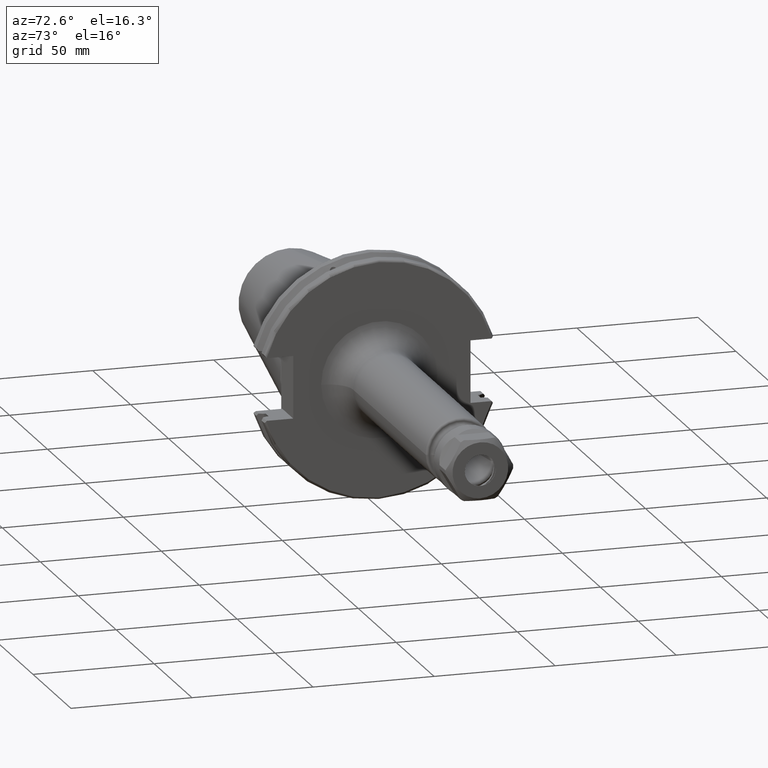
[diagram: clean part render]
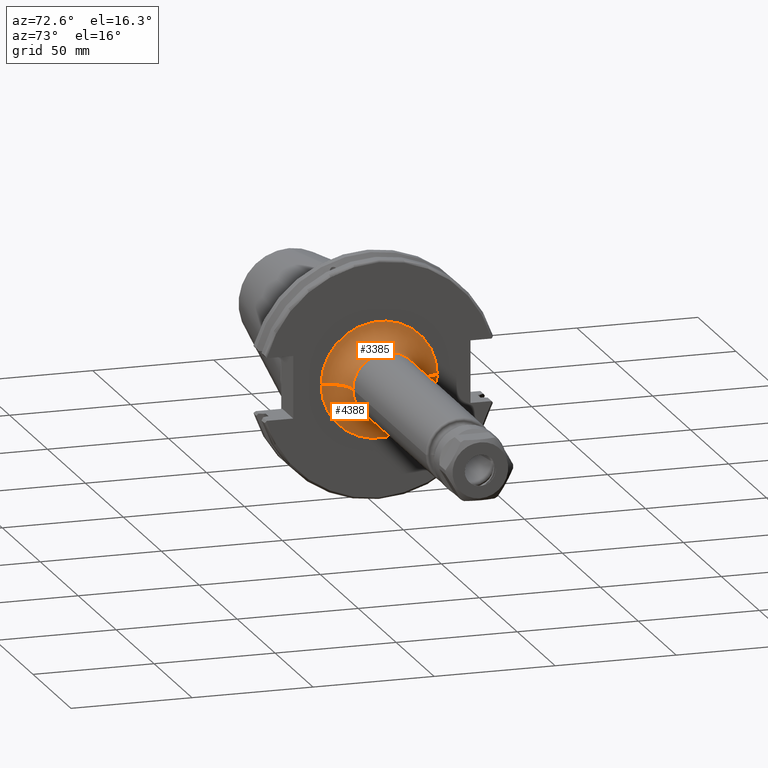
[diagram: same view with one multi-face feature highlighted, each face labeled with its STEP entity id]
A machine part, auxiliary view. The highlighted faces form ONE feature: a constant-radius fillet chain: 2 tangent blend faces with common blend radius 10.0076 mm. The faces share edges in the B-rep.
Their STEP definitions:
[1] entity #3385 (Torus):
#879=CARTESIAN_POINT('',(1.144E0,0.E0,0.E0));
#880=DIRECTION('',(1.E0,0.E0,0.E0));
#881=DIRECTION('',(0.E0,1.E0,0.E0));
#882=AXIS2_PLACEMENT_3D('',#879,#880,#881);
#889=CARTESIAN_POINT('',(1.144E0,9.45E-1,-1.314789735418E-10));
#890=DIRECTION('',(0.E0,1.391311926779E-10,1.E0));
#891=DIRECTION('',(-1.E0,-2.643091611340E-11,0.E0));
#892=AXIS2_PLACEMENT_3D('',#889,#890,#891);
#939=CARTESIAN_POINT('',(7.5E-1,0.E0,0.E0));
#940=DIRECTION('',(1.E0,0.E0,0.E0));
#941=DIRECTION('',(0.E0,1.E0,0.E0));
#942=AXIS2_PLACEMENT_3D('',#939,#940,#941);
#1866=CARTESIAN_POINT('',(1.144E0,-9.45E-1,1.314793378338E-10));
#1867=DIRECTION('',(0.E0,-1.391315777866E-10,-1.E0));
#1868=DIRECTION('',(-1.E0,2.643091611340E-11,0.E0));
#1869=AXIS2_PLACEMENT_3D('',#1866,#1867,#1868);
#2219=CARTESIAN_POINT('',(7.5E-1,-9.45E-1,0.E0));
#2220=CARTESIAN_POINT('',(7.5E-1,9.45E-1,0.E0));
#2221=VERTEX_POINT('',#2219);
#2222=VERTEX_POINT('',#2220);
#2223=CARTESIAN_POINT('',(1.144E0,-5.51E-1,0.E0));
#2224=CARTESIAN_POINT('',(1.144E0,5.51E-1,0.E0));
#2225=VERTEX_POINT('',#2223);
#2226=VERTEX_POINT('',#2224);
#3371=CARTESIAN_POINT('',(1.144E0,0.E0,0.E0));
#3372=DIRECTION('',(1.E0,0.E0,0.E0));
#3373=DIRECTION('',(0.E0,9.995255899225E-1,-3.079927093541E-2));
#3374=AXIS2_PLACEMENT_3D('',#3371,#3372,#3373);
#3375=TOROIDAL_SURFACE('',#3374,9.45E-1,3.94E-1);
#3377=ORIENTED_EDGE('',*,*,#3376,.F.);
#3379=ORIENTED_EDGE('',*,*,#3378,.T.);
#3380=ORIENTED_EDGE('',*,*,#3353,.T.);
#3382=ORIENTED_EDGE('',*,*,#3381,.F.);
#3383=EDGE_LOOP('',(#3377,#3379,#3380,#3382));
#3384=FACE_OUTER_BOUND('',#3383,.F.);
#3385=ADVANCED_FACE('',(#3384),#3375,.F.);
#883=CIRCLE('',#882,5.51E-1);
#893=CIRCLE('',#892,3.94E-1);
#943=CIRCLE('',#942,9.45E-1);
#1870=CIRCLE('',#1869,3.94E-1);
#3353=EDGE_CURVE('',#2226,#2225,#883,.T.);
#3376=EDGE_CURVE('',#2222,#2221,#943,.T.);
#3378=EDGE_CURVE('',#2222,#2226,#893,.T.);
#3381=EDGE_CURVE('',#2221,#2225,#1870,.T.);
[2] entity #4388 (Torus):
#865=CARTESIAN_POINT('',(1.144E0,0.E0,0.E0));
#866=DIRECTION('',(1.E0,0.E0,0.E0));
#867=DIRECTION('',(0.E0,-1.E0,0.E0));
#868=AXIS2_PLACEMENT_3D('',#865,#866,#867);
#889=CARTESIAN_POINT('',(1.144E0,9.45E-1,-1.314789735418E-10));
#890=DIRECTION('',(0.E0,1.391311926779E-10,1.E0));
#891=DIRECTION('',(-1.E0,-2.643091611340E-11,0.E0));
#892=AXIS2_PLACEMENT_3D('',#889,#890,#891);
#934=CARTESIAN_POINT('',(7.5E-1,0.E0,0.E0));
#935=DIRECTION('',(1.E0,0.E0,0.E0));
#936=DIRECTION('',(0.E0,-1.E0,0.E0));
#937=AXIS2_PLACEMENT_3D('',#934,#935,#936);
#1866=CARTESIAN_POINT('',(1.144E0,-9.45E-1,1.314793378338E-10));
#1867=DIRECTION('',(0.E0,-1.391315777866E-10,-1.E0));
#1868=DIRECTION('',(-1.E0,2.643091611340E-11,0.E0));
#1869=AXIS2_PLACEMENT_3D('',#1866,#1867,#1868);
#2219=CARTESIAN_POINT('',(7.5E-1,-9.45E-1,0.E0));
#2220=CARTESIAN_POINT('',(7.5E-1,9.45E-1,0.E0));
#2221=VERTEX_POINT('',#2219);
#2222=VERTEX_POINT('',#2220);
#2223=CARTESIAN_POINT('',(1.144E0,-5.51E-1,0.E0));
#2224=CARTESIAN_POINT('',(1.144E0,5.51E-1,0.E0));
#2225=VERTEX_POINT('',#2223);
#2226=VERTEX_POINT('',#2224);
#4377=CARTESIAN_POINT('',(1.144E0,0.E0,0.E0));
#4378=DIRECTION('',(1.E0,0.E0,0.E0));
#4379=DIRECTION('',(0.E0,-9.995255899225E-1,3.079927093541E-2));
#4380=AXIS2_PLACEMENT_3D('',#4377,#4378,#4379);
#4381=TOROIDAL_SURFACE('',#4380,9.45E-1,3.94E-1);
#4382=ORIENTED_EDGE('',*,*,#3417,.F.);
#4383=ORIENTED_EDGE('',*,*,#3381,.T.);
#4384=ORIENTED_EDGE('',*,*,#3338,.T.);
#4385=ORIENTED_EDGE('',*,*,#3378,.F.);
#4386=EDGE_LOOP('',(#4382,#4383,#4384,#4385));
#4387=FACE_OUTER_BOUND('',#4386,.F.);
#4388=ADVANCED_FACE('',(#4387),#4381,.F.);
#869=CIRCLE('',#868,5.51E-1);
#893=CIRCLE('',#892,3.94E-1);
#938=CIRCLE('',#937,9.45E-1);
#1870=CIRCLE('',#1869,3.94E-1);
#3338=EDGE_CURVE('',#2225,#2226,#869,.T.);
#3378=EDGE_CURVE('',#2222,#2226,#893,.T.);
#3381=EDGE_CURVE('',#2221,#2225,#1870,.T.);
#3417=EDGE_CURVE('',#2221,#2222,#938,.T.);